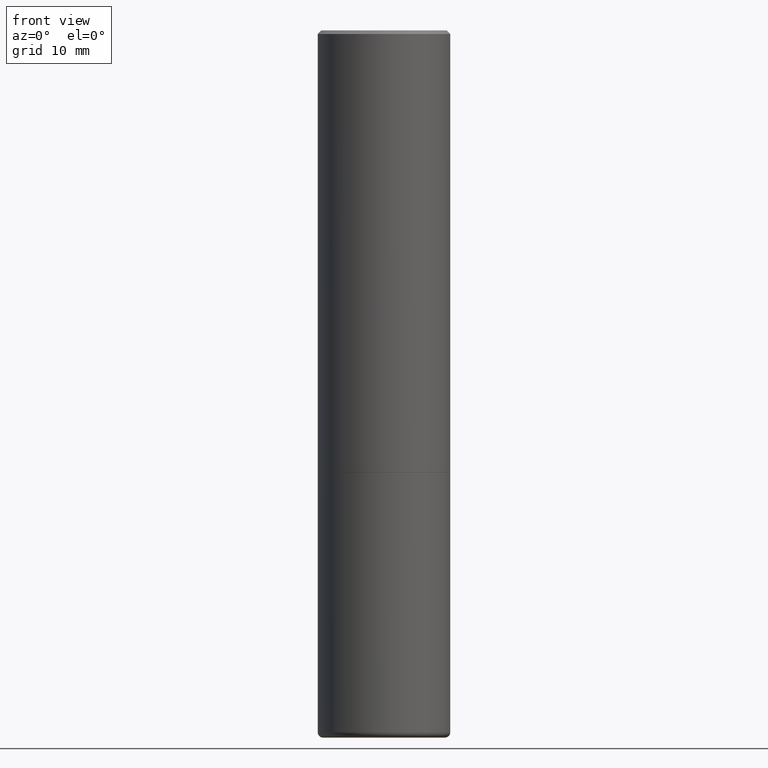
[diagram: clean part render]
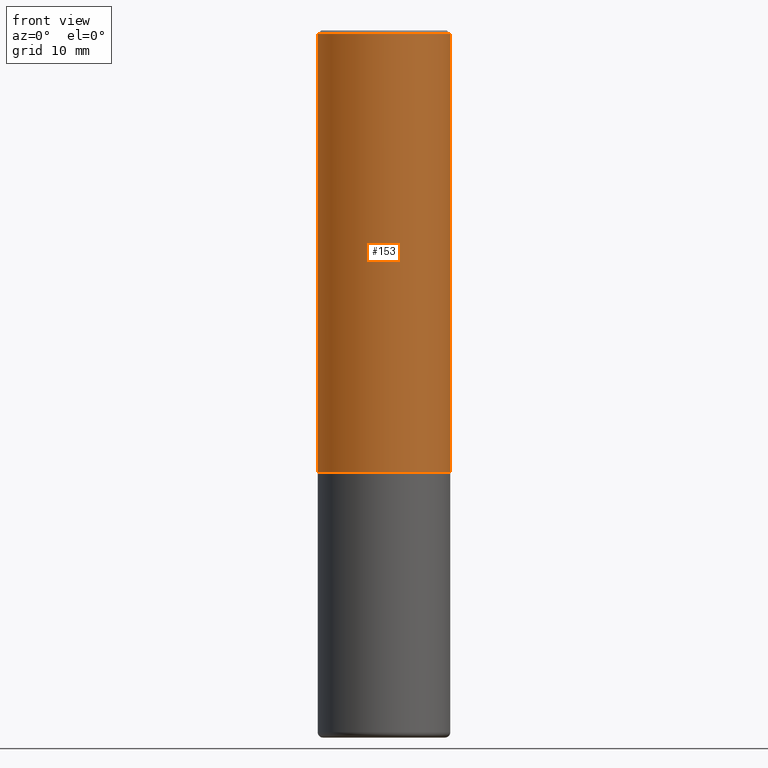
[diagram: same view with one face highlighted and labeled with its STEP entity id]
A machine part, front view. The second image highlights one B-rep face of the part: STEP entity #153.
In plain terms, the highlighted cylindrical surface (partial cylindrical patch) has radius 9.525 mm, axis along (-0, 0, 1).
Its self-contained STEP definition (entity closure, byte-faithful):
#1 = VECTOR ( 'NONE', #276, 39.37007874015748143 ) ;
#5 = LINE ( 'NONE', #280, #1 ) ;
#16 = VERTEX_POINT ( 'NONE', #95 ) ;
#28 = CIRCLE ( 'NONE', #161, 0.3749999999999996669 ) ;
#29 = FACE_OUTER_BOUND ( 'NONE', #155, .T. ) ;
#44 = DIRECTION ( 'NONE',  ( -2.445468806185136877E-29, 3.491481338843145188E-15, 1.000000000000000000 ) ) ;
#45 = VERTEX_POINT ( 'NONE', #336 ) ;
#92 = DIRECTION ( 'NONE',  ( 1.000000000000000000, -6.982962677686264344E-15, 0.000000000000000000 ) ) ;
#95 = CARTESIAN_POINT ( 'NONE',  ( 0.3750000000000000555, -1.134382286990137353E-14, -2.499000000000000998 ) ) ;
#98 = AXIS2_PLACEMENT_3D ( 'NONE', #358, #428, #129 ) ;
#115 = ORIENTED_EDGE ( 'NONE', *, *, #432, .T. ) ;
#117 = CARTESIAN_POINT ( 'NONE',  ( 0.3749999999999998335, -2.618611004132348439E-15, 1.828566290923475082E-29 ) ) ;
#129 = DIRECTION ( 'NONE',  ( 1.000000000000000000, -6.982962677686265922E-15, 4.876176775795935793E-29 ) ) ;
#139 = CARTESIAN_POINT ( 'NONE',  ( -0.3749999999999999445, -1.732985487172565737E-15, -2.499000000000000998 ) ) ;
#140 = EDGE_CURVE ( 'NONE', #324, #16, #174, .T. ) ;
#141 = CARTESIAN_POINT ( 'NONE',  ( 4.890937612370278413E-31, -6.982962677686297772E-17, -0.02000000000000002123 ) ) ;
#153 = ADVANCED_FACE ( 'NONE', ( #29 ), #437, .T. ) ;
#155 = EDGE_LOOP ( 'NONE', ( #354, #436, #115, #423 ) ) ;
#161 = AXIS2_PLACEMENT_3D ( 'NONE', #141, #274, #442 ) ;
#174 = CIRCLE ( 'NONE', #261, 0.3750000000000000555 ) ;
#177 = CARTESIAN_POINT ( 'NONE',  ( -0.3749999999999996669, 2.548781377355484746E-15, -0.02000000000000002123 ) ) ;
#236 = CARTESIAN_POINT ( 'NONE',  ( 6.111226546656659252E-29, -8.725211865769023513E-15, -2.499000000000000998 ) ) ;
#261 = AXIS2_PLACEMENT_3D ( 'NONE', #236, #394, #92 ) ;
#274 = DIRECTION ( 'NONE',  ( -2.445468806185136597E-29, 3.491481338843145583E-15, 1.000000000000000000 ) ) ;
#276 = DIRECTION ( 'NONE',  ( -2.445468806185136877E-29, 3.491481338843145188E-15, 1.000000000000000000 ) ) ;
#280 = CARTESIAN_POINT ( 'NONE',  ( -0.3749999999999998335, 2.664535259100374514E-15, -1.844600658845588757E-29 ) ) ;
#283 = EDGE_CURVE ( 'NONE', #324, #322, #5, .T. ) ;
#322 = VERTEX_POINT ( 'NONE', #177 ) ;
#323 = VECTOR ( 'NONE', #44, 39.37007874015748143 ) ;
#324 = VERTEX_POINT ( 'NONE', #139 ) ;
#336 = CARTESIAN_POINT ( 'NONE',  ( 0.3749999999999996669, -2.642516375941185268E-15, -0.02000000000000002123 ) ) ;
#341 = EDGE_CURVE ( 'NONE', #322, #45, #28, .T. ) ;
#354 = ORIENTED_EDGE ( 'NONE', *, *, #283, .F. ) ;
#358 = CARTESIAN_POINT ( 'NONE',  ( 0.000000000000000000, 0.000000000000000000, 0.000000000000000000 ) ) ;
#394 = DIRECTION ( 'NONE',  ( -2.445468806185136597E-29, 3.491481338843145583E-15, 1.000000000000000000 ) ) ;
#421 = LINE ( 'NONE', #117, #323 ) ;
#423 = ORIENTED_EDGE ( 'NONE', *, *, #341, .F. ) ;
#428 = DIRECTION ( 'NONE',  ( -2.445468806185136597E-29, 3.491481338843145583E-15, 1.000000000000000000 ) ) ;
#432 = EDGE_CURVE ( 'NONE', #16, #45, #421, .T. ) ;
#436 = ORIENTED_EDGE ( 'NONE', *, *, #140, .T. ) ;
#437 = CYLINDRICAL_SURFACE ( 'NONE', #98, 0.3749999999999998335 ) ;
#442 = DIRECTION ( 'NONE',  ( 1.000000000000000000, -6.982962677686266711E-15, 0.000000000000000000 ) ) ;